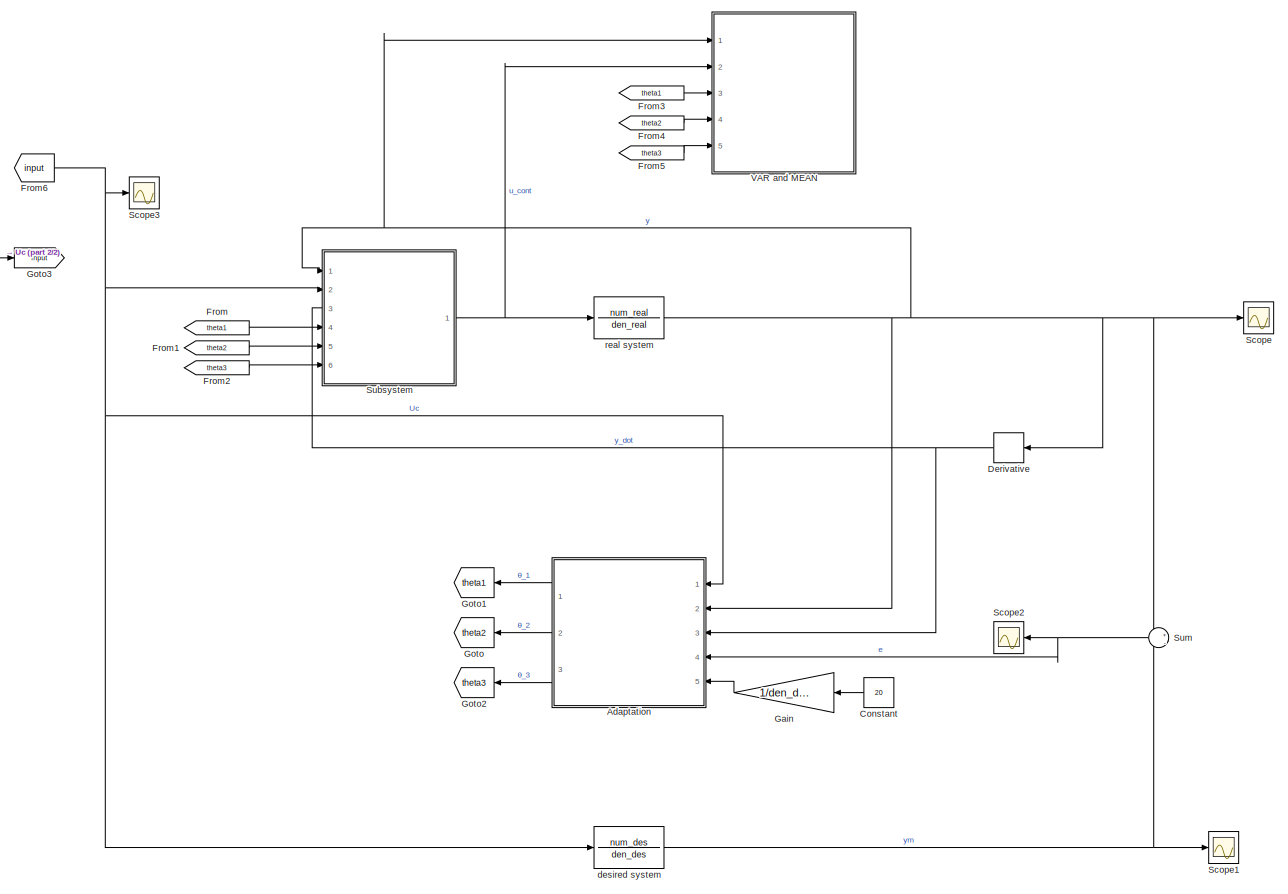
[diagram: root canvas - part 1/2, most of the canvas]
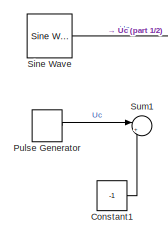
[diagram: root canvas - part 2/2, top left region]
MODEL slx_e05d6d63c537
KIND model
CONFIG AbsTol = auto
CONFIG EnableMultiTasking = off
CONFIG FixedStep = auto
CONFIG MaxStep = auto
CONFIG MinStep = auto
CONFIG RelTol = 1e-4
CONFIG SampleTimeConstraint = Unconstrained
CONFIG SolverName = VariableStepAuto
CONFIG StartTime = 0.0
CONFIG StopTime = 6000
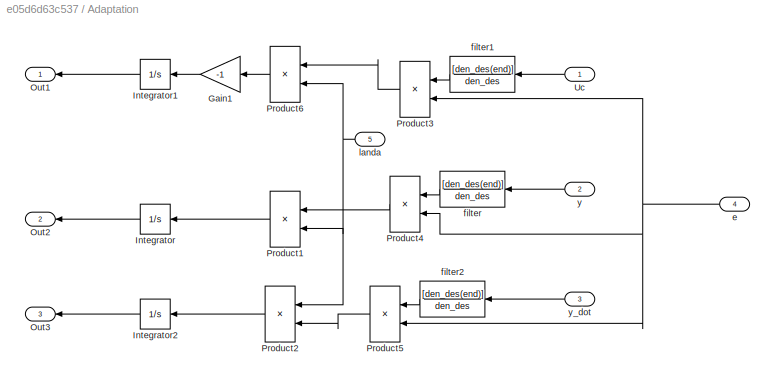
BLOCK [SubSystem] Adaptation
  NameLocation = top
  Ports = [5, 3]
  RequestExecContextInheritance = off
BLOCK [Gain] Adaptation/Gain1
  Gain = -1
  NameLocation = top
BLOCK [Integrator] Adaptation/Integrator
  NameLocation = top
  Ports = [1, 1]
BLOCK [Integrator] Adaptation/Integrator1
  NameLocation = top
  Ports = [1, 1]
BLOCK [Integrator] Adaptation/Integrator2
  NameLocation = top
  Ports = [1, 1]
BLOCK [Outport] Adaptation/Out1
  NameLocation = top
BLOCK [Outport] Adaptation/Out2
  NameLocation = top
  Port = 2
BLOCK [Outport] Adaptation/Out3
  NameLocation = top
  Port = 3
BLOCK [Product] Adaptation/Product1
  NameLocation = top
  Ports = [2, 1]
BLOCK [Product] Adaptation/Product2
  NameLocation = top
  Ports = [2, 1]
BLOCK [Product] Adaptation/Product3
  NameLocation = top
  Ports = [2, 1]
BLOCK [Product] Adaptation/Product4
  NameLocation = top
  Ports = [2, 1]
BLOCK [Product] Adaptation/Product5
  NameLocation = top
  Ports = [2, 1]
BLOCK [Product] Adaptation/Product6
  NameLocation = top
  Ports = [2, 1]
BLOCK [Inport] Adaptation/Uc
  NameLocation = top
BLOCK [Inport] Adaptation/e
  NameLocation = top
  Port = 4
BLOCK [TransferFcn] Adaptation/filter
  Denominator = den_des
  NameLocation = top
  Numerator = [den_des(end)]
BLOCK [TransferFcn] Adaptation/filter1
  Denominator = den_des
  NameLocation = top
  Numerator = [den_des(end)]
BLOCK [TransferFcn] Adaptation/filter2
  Denominator = den_des
  NameLocation = top
  Numerator = [den_des(end)]
BLOCK [Inport] Adaptation/landa
  NameLocation = top
  Port = 5
BLOCK [Inport] Adaptation/y
  NameLocation = top
  Port = 2
BLOCK [Inport] Adaptation/y_dot
  NameLocation = top
  Port = 3
BLOCK [Constant] Constant
  NameLocation = top
  Value = 20
BLOCK [Constant] Constant1
  Value = -1
BLOCK [Derivative] Derivative
  NameLocation = top
BLOCK [From] From
  GotoTag = theta1
BLOCK [From] From1
  GotoTag = theta2
BLOCK [From] From2
  GotoTag = theta3
BLOCK [From] From3
  GotoTag = theta1
BLOCK [From] From4
  GotoTag = theta2
BLOCK [From] From5
  GotoTag = theta3
BLOCK [From] From6
  GotoTag = input
BLOCK [Gain] Gain
  Gain = 1/den_des(end)
  NameLocation = top
BLOCK [Goto] Goto
  GotoTag = theta2
  NameLocation = top
BLOCK [Goto] Goto1
  GotoTag = theta1
  NameLocation = top
BLOCK [Goto] Goto2
  GotoTag = theta3
  NameLocation = top
BLOCK [Goto] Goto3
  GotoTag = input
BLOCK [DiscretePulseGenerator] Pulse Generator
  Amplitude = 2
  Period = period
  Ports = [0, 1]
  PulseType = Time based
  PulseWidth = 50
BLOCK [Scope] Scope
  Floating = off
  NumInputPorts = 1
  Ports = [1]
  ScopeSpecificationString = Simulink.scopes.TimeScopeBlockCfg('CurrentConfiguration', extmgr.ConfigurationSet(extmgr.Configuration('Core','General UI',true),extmgr.Configuration('Core','Source UI',true),extmgr.Configuration('Sources','WiredSimulink',true),extmgr.Configuration('Visuals','Time Domain',true,'SerializedDisplays',{struct('MinYLimReal','-3.3341','MaxYLimReal','5.52282','YLabelReal','','MinYLimMag','0.00000','MaxYL...<+1390ch>
BLOCK [Scope] Scope1
  Floating = off
  NumInputPorts = 1
  Ports = [1]
  ScopeSpecificationString = Simulink.scopes.TimeScopeBlockCfg('CurrentConfiguration', extmgr.ConfigurationSet(extmgr.Configuration('Core','General UI',true),extmgr.Configuration('Core','Source UI',true),extmgr.Configuration('Sources','WiredSimulink',true,'DataLoggingVariableName','ScopeData1'),extmgr.Configuration('Visuals','Time Domain',true,'SerializedDisplays',{struct('MinYLimReal','-0.24985','MaxYLimReal','1.24998','YLab...<+1361ch>
BLOCK [Scope] Scope2
  Floating = off
  NameLocation = top
  NumInputPorts = 1
  Ports = [1]
  ScopeSpecificationString = Simulink.scopes.TimeScopeBlockCfg('CurrentConfiguration', extmgr.ConfigurationSet(extmgr.Configuration('Core','General UI',true),extmgr.Configuration('Core','Source UI',true),extmgr.Configuration('Sources','WiredSimulink',true,'DataLoggingVariableName','ScopeData2'),extmgr.Configuration('Visuals','Time Domain',true,'SerializedDisplays',{struct('MinYLimReal','-0.12787','MaxYLimReal','0.22108','YLab...<+1437ch>
BLOCK [Scope] Scope3
  Floating = off
  NumInputPorts = 1
  Ports = [1]
  ScopeSpecificationString = Simulink.scopes.TimeScopeBlockCfg('CurrentConfiguration', extmgr.ConfigurationSet(extmgr.Configuration('Core','General UI',true),extmgr.Configuration('Core','Source UI',true),extmgr.Configuration('Sources','WiredSimulink',true,'DataLoggingVariableName','ScopeData1'),extmgr.Configuration('Visuals','Time Domain',true,'SerializedDisplays',{struct('MinYLimReal','-1.25','MaxYLimReal','1.25','YLabelReal...<+1394ch>
BLOCK [Reference] Sine Wave  REF=dspsrcs4/Sine Wave
  Ports = [0, 1]
  SourceBlock = dspsrcs4/Sine Wave
  SourceProductBaseCode = DS
  SourceType = Sine Wave
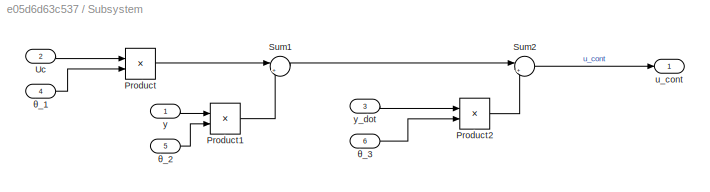
BLOCK [SubSystem] Subsystem
  Ports = [6, 1]
  RequestExecContextInheritance = off
BLOCK [Product] Subsystem/Product
  Ports = [2, 1]
BLOCK [Product] Subsystem/Product1
  Ports = [2, 1]
BLOCK [Product] Subsystem/Product2
  Ports = [2, 1]
BLOCK [Sum] Subsystem/Sum1
  Inputs = |+-
  Ports = [2, 1]
BLOCK [Sum] Subsystem/Sum2
  Inputs = |+-
  Ports = [2, 1]
BLOCK [Inport] Subsystem/Uc
  Port = 2
BLOCK [Outport] Subsystem/u_cont
BLOCK [Inport] Subsystem/y
BLOCK [Inport] Subsystem/y_dot
  NameLocation = top
  Port = 3
BLOCK [Inport] Subsystem/θ_1
  Port = 4
BLOCK [Inport] Subsystem/θ_2
  Port = 5
BLOCK [Inport] Subsystem/θ_3
  Port = 6
BLOCK [Sum] Sum
  Inputs = +|-
  NameLocation = top
  Ports = [2, 1]
BLOCK [Sum] Sum1
  Inputs = |++
  Ports = [2, 1]
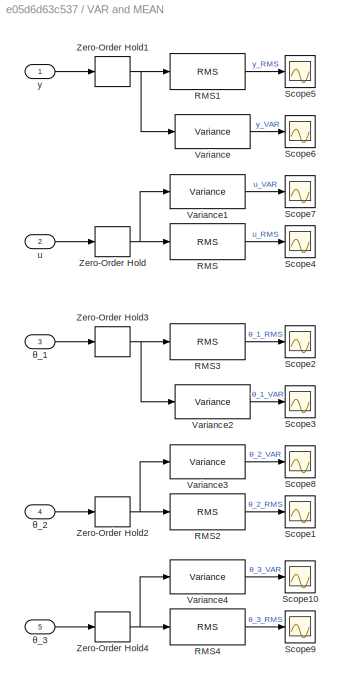
BLOCK [SubSystem] VAR and MEAN
  Ports = [5]
  RequestExecContextInheritance = off
BLOCK [Reference] VAR and MEAN/RMS  REF=dspstat3/RMS
  Ports = [1, 1]
  SourceBlock = dspstat3/RMS
  SourceProductBaseCode = DS
  SourceType = RMS
  UserDataPersistent = on
BLOCK [Reference] VAR and MEAN/RMS1  REF=dspstat3/RMS
  Ports = [1, 1]
  SourceBlock = dspstat3/RMS
  SourceProductBaseCode = DS
  SourceType = RMS
  UserDataPersistent = on
BLOCK [Reference] VAR and MEAN/RMS2  REF=dspstat3/RMS
  Ports = [1, 1]
  SourceBlock = dspstat3/RMS
  SourceProductBaseCode = DS
  SourceType = RMS
  UserDataPersistent = on
BLOCK [Reference] VAR and MEAN/RMS3  REF=dspstat3/RMS
  Ports = [1, 1]
  SourceBlock = dspstat3/RMS
  SourceProductBaseCode = DS
  SourceType = RMS
  UserDataPersistent = on
BLOCK [Reference] VAR and MEAN/RMS4  REF=dspstat3/RMS
  Ports = [1, 1]
  SourceBlock = dspstat3/RMS
  SourceProductBaseCode = DS
  SourceType = RMS
  UserDataPersistent = on
BLOCK [Scope] VAR and MEAN/Scope1
  Floating = off
  NumInputPorts = 1
  Ports = [1]
  ScopeSpecificationString = Simulink.scopes.TimeScopeBlockCfg('CurrentConfiguration', extmgr.ConfigurationSet(extmgr.Configuration('Core','General UI',true),extmgr.Configuration('Core','Source UI',true),extmgr.Configuration('Sources','WiredSimulink',true,'DataLoggingVariableName','ScopeData5'),extmgr.Configuration('Visuals','Time Domain',true,'SerializedDisplays',{struct('MinYLimReal','-2333444.99454','MaxYLimReal','21001004...<+1414ch>
BLOCK [Scope] VAR and MEAN/Scope10
  Floating = off
  NumInputPorts = 1
  Ports = [1]
  ScopeSpecificationString = Simulink.scopes.TimeScopeBlockCfg('CurrentConfiguration', extmgr.ConfigurationSet(extmgr.Configuration('Core','General UI',true),extmgr.Configuration('Core','Source UI',true),extmgr.Configuration('Sources','WiredSimulink',true,'DataLoggingVariableName','ScopeData9'),extmgr.Configuration('Visuals','Time Domain',true,'SerializedDisplays',{struct('MinYLimReal','-700780947940.47388','MaxYLimReal','630...<+1454ch>
BLOCK [Scope] VAR and MEAN/Scope2
  Floating = off
  NumInputPorts = 1
  Ports = [1]
  ScopeSpecificationString = Simulink.scopes.TimeScopeBlockCfg('CurrentConfiguration', extmgr.ConfigurationSet(extmgr.Configuration('Core','General UI',true),extmgr.Configuration('Core','Source UI',true),extmgr.Configuration('Sources','WiredSimulink',true,'DataLoggingVariableName','ScopeData6'),extmgr.Configuration('Visuals','Time Domain',true,'SerializedDisplays',{struct('MinYLimReal','-25.88556','MaxYLimReal','232.97003','Y...<+1401ch>
BLOCK [Scope] VAR and MEAN/Scope3
  Floating = off
  NumInputPorts = 1
  Ports = [1]
  ScopeSpecificationString = Simulink.scopes.TimeScopeBlockCfg('CurrentConfiguration', extmgr.ConfigurationSet(extmgr.Configuration('Core','General UI',true),extmgr.Configuration('Core','Source UI',true),extmgr.Configuration('Sources','WiredSimulink',true,'DataLoggingVariableName','ScopeData7'),extmgr.Configuration('Visuals','Time Domain',true,'SerializedDisplays',{struct('MinYLimReal','-144860640595580096.00000','MaxYLimReal...<+1504ch>
BLOCK [Scope] VAR and MEAN/Scope4
  Floating = off
  NumInputPorts = 1
  Ports = [1]
  ScopeSpecificationString = Simulink.scopes.TimeScopeBlockCfg('CurrentConfiguration', extmgr.ConfigurationSet(extmgr.Configuration('Core','General UI',true),extmgr.Configuration('Core','Source UI',true),extmgr.Configuration('Sources','WiredSimulink',true,'DataLoggingVariableName','ScopeData1'),extmgr.Configuration('Visuals','Time Domain',true,'SerializedDisplays',{struct('MinYLimReal','-24540906746.85534','MaxYLimReal','2208...<+1446ch>
BLOCK [Scope] VAR and MEAN/Scope5
  Floating = off
  NumInputPorts = 1
  Ports = [1]
  ScopeSpecificationString = Simulink.scopes.TimeScopeBlockCfg('CurrentConfiguration', extmgr.ConfigurationSet(extmgr.Configuration('Core','General UI',true),extmgr.Configuration('Core','Source UI',true),extmgr.Configuration('Sources','WiredSimulink',true,'DataLoggingVariableName','ScopeData2'),extmgr.Configuration('Visuals','Time Domain',true,'SerializedDisplays',{struct('MinYLimReal','-2625.16697','MaxYLimReal','23626.50275...<+1417ch>
BLOCK [Scope] VAR and MEAN/Scope6
  Floating = off
  NumInputPorts = 1
  Ports = [1]
  ScopeSpecificationString = Simulink.scopes.TimeScopeBlockCfg('CurrentConfiguration', extmgr.ConfigurationSet(extmgr.Configuration('Core','General UI',true),extmgr.Configuration('Core','Source UI',true),extmgr.Configuration('Sources','WiredSimulink',true,'DataLoggingVariableName','ScopeData3'),extmgr.Configuration('Visuals','Time Domain',true,'SerializedDisplays',{struct('MinYLimReal','-1127987.05968','MaxYLimReal','10151883...<+1414ch>
BLOCK [Scope] VAR and MEAN/Scope7
  Floating = off
  NumInputPorts = 1
  Ports = [1]
  ScopeSpecificationString = Simulink.scopes.TimeScopeBlockCfg('CurrentConfiguration', extmgr.ConfigurationSet(extmgr.Configuration('Core','General UI',true),extmgr.Configuration('Core','Source UI',true),extmgr.Configuration('Sources','WiredSimulink',true,'DataLoggingVariableName','ScopeData4'),extmgr.Configuration('Visuals','Time Domain',true,'SerializedDisplays',{struct('MinYLimReal','-123390933656161288192.00000','MaxYLimR...<+1526ch>
BLOCK [Scope] VAR and MEAN/Scope8
  Floating = off
  NumInputPorts = 1
  Ports = [1]
  ScopeSpecificationString = Simulink.scopes.TimeScopeBlockCfg('CurrentConfiguration', extmgr.ConfigurationSet(extmgr.Configuration('Core','General UI',true),extmgr.Configuration('Core','Source UI',true),extmgr.Configuration('Sources','WiredSimulink',true,'DataLoggingVariableName','ScopeData8'),extmgr.Configuration('Visuals','Time Domain',true,'SerializedDisplays',{struct('MinYLimReal','-700780947940.47388','MaxYLimReal','630...<+1454ch>
BLOCK [Scope] VAR and MEAN/Scope9
  Floating = off
  NumInputPorts = 1
  Ports = [1]
  ScopeSpecificationString = Simulink.scopes.TimeScopeBlockCfg('CurrentConfiguration', extmgr.ConfigurationSet(extmgr.Configuration('Core','General UI',true),extmgr.Configuration('Core','Source UI',true),extmgr.Configuration('Sources','WiredSimulink',true,'DataLoggingVariableName','ScopeData10'),extmgr.Configuration('Visuals','Time Domain',true,'SerializedDisplays',{struct('MinYLimReal','-2333444.99454','MaxYLimReal','2100100...<+1415ch>
BLOCK [Reference] VAR and MEAN/Variance  REF=dspstat3/Variance
  Ports = [1, 1]
  SourceBlock = dspstat3/Variance
  SourceProductBaseCode = DS
  SourceType = Variance
  UserDataPersistent = on
BLOCK [Reference] VAR and MEAN/Variance1  REF=dspstat3/Variance
  Ports = [1, 1]
  SourceBlock = dspstat3/Variance
  SourceProductBaseCode = DS
  SourceType = Variance
  UserDataPersistent = on
BLOCK [Reference] VAR and MEAN/Variance2  REF=dspstat3/Variance
  Ports = [1, 1]
  SourceBlock = dspstat3/Variance
  SourceProductBaseCode = DS
  SourceType = Variance
  UserDataPersistent = on
BLOCK [Reference] VAR and MEAN/Variance3  REF=dspstat3/Variance
  Ports = [1, 1]
  SourceBlock = dspstat3/Variance
  SourceProductBaseCode = DS
  SourceType = Variance
  UserDataPersistent = on
BLOCK [Reference] VAR and MEAN/Variance4  REF=dspstat3/Variance
  Ports = [1, 1]
  SourceBlock = dspstat3/Variance
  SourceProductBaseCode = DS
  SourceType = Variance
  UserDataPersistent = on
BLOCK [ZeroOrderHold] VAR and MEAN/Zero-Order Hold
BLOCK [ZeroOrderHold] VAR and MEAN/Zero-Order Hold1
BLOCK [ZeroOrderHold] VAR and MEAN/Zero-Order Hold2
BLOCK [ZeroOrderHold] VAR and MEAN/Zero-Order Hold3
BLOCK [ZeroOrderHold] VAR and MEAN/Zero-Order Hold4
BLOCK [Inport] VAR and MEAN/u
  Port = 2
BLOCK [Inport] VAR and MEAN/y
BLOCK [Inport] VAR and MEAN/θ_1
  Port = 3
BLOCK [Inport] VAR and MEAN/θ_2
  Port = 4
BLOCK [Inport] VAR and MEAN/θ_3
  Port = 5
BLOCK [TransferFcn] desired system
  Denominator = den_des
  Numerator = num_des
BLOCK [TransferFcn] real system
  Denominator = den_real
  Numerator = num_real
LINE Adaptation/Gain1:1 -> Adaptation/Integrator1:1
LINE Adaptation/Integrator1:1 -> Adaptation/Out1:1
LINE Adaptation/Integrator2:1 -> Adaptation/Out3:1
LINE Adaptation/Integrator:1 -> Adaptation/Out2:1
LINE Adaptation/Product1:1 -> Adaptation/Integrator:1
LINE Adaptation/Product2:1 -> Adaptation/Integrator2:1
LINE Adaptation/Product3:1 -> Adaptation/Product6:1
LINE Adaptation/Product4:1 -> Adaptation/Product1:1
LINE Adaptation/Product5:1 -> Adaptation/Product2:2
LINE Adaptation/Product6:1 -> Adaptation/Gain1:1
LINE Adaptation/Uc:1 -> Adaptation/filter1:1
NET Adaptation/e:1 -> Adaptation/Product3:2, Adaptation/Product4:2, Adaptation/Product5:2
LINE Adaptation/filter1:1 -> Adaptation/Product3:1
LINE Adaptation/filter2:1 -> Adaptation/Product5:1
LINE Adaptation/filter:1 -> Adaptation/Product4:1
NET Adaptation/landa:1 -> Adaptation/Product1:2, Adaptation/Product2:1, Adaptation/Product6:2
LINE Adaptation/y:1 -> Adaptation/filter:1
LINE Adaptation/y_dot:1 -> Adaptation/filter2:1
LINE Adaptation:1 -> Goto1:1
LINE Adaptation:2 -> Goto:1
LINE Adaptation:3 -> Goto2:1
LINE Constant1:1 -> Sum1:2
LINE Constant:1 -> Gain:1
NET Derivative:1 -> Adaptation:3, Subsystem:3
LINE From1:1 -> Subsystem:5
LINE From2:1 -> Subsystem:6
LINE From3:1 -> VAR and MEAN:3
LINE From4:1 -> VAR and MEAN:4
LINE From5:1 -> VAR and MEAN:5
NET From6:1 -> Adaptation:1, Scope3:1, Subsystem:2, desired system:1
LINE From:1 -> Subsystem:4
LINE Gain:1 -> Adaptation:5
LINE Pulse Generator:1 -> Sum1:1
LINE Sine Wave:1 -> Goto3:1
LINE Subsystem/Product1:1 -> Subsystem/Sum1:2
LINE Subsystem/Product2:1 -> Subsystem/Sum2:2
LINE Subsystem/Product:1 -> Subsystem/Sum1:1
LINE Subsystem/Sum1:1 -> Subsystem/Sum2:1
LINE Subsystem/Sum2:1 -> Subsystem/u_cont:1
LINE Subsystem/Uc:1 -> Subsystem/Product:1
LINE Subsystem/y:1 -> Subsystem/Product1:1
LINE Subsystem/y_dot:1 -> Subsystem/Product2:1
LINE Subsystem/θ_1:1 -> Subsystem/Product:2
LINE Subsystem/θ_2:1 -> Subsystem/Product1:2
LINE Subsystem/θ_3:1 -> Subsystem/Product2:2
NET Subsystem:1 -> VAR and MEAN:2, real system:1
NET Sum:1 -> Adaptation:4, Scope2:1
LINE VAR and MEAN/RMS1:1 -> VAR and MEAN/Scope5:1
LINE VAR and MEAN/RMS2:1 -> VAR and MEAN/Scope1:1
LINE VAR and MEAN/RMS3:1 -> VAR and MEAN/Scope2:1
LINE VAR and MEAN/RMS4:1 -> VAR and MEAN/Scope9:1
LINE VAR and MEAN/RMS:1 -> VAR and MEAN/Scope4:1
LINE VAR and MEAN/Variance1:1 -> VAR and MEAN/Scope7:1
LINE VAR and MEAN/Variance2:1 -> VAR and MEAN/Scope3:1
LINE VAR and MEAN/Variance3:1 -> VAR and MEAN/Scope8:1
LINE VAR and MEAN/Variance4:1 -> VAR and MEAN/Scope10:1
LINE VAR and MEAN/Variance:1 -> VAR and MEAN/Scope6:1
NET VAR and MEAN/Zero-Order Hold1:1 -> VAR and MEAN/RMS1:1, VAR and MEAN/Variance:1
NET VAR and MEAN/Zero-Order Hold2:1 -> VAR and MEAN/RMS2:1, VAR and MEAN/Variance3:1
NET VAR and MEAN/Zero-Order Hold3:1 -> VAR and MEAN/RMS3:1, VAR and MEAN/Variance2:1
NET VAR and MEAN/Zero-Order Hold4:1 -> VAR and MEAN/RMS4:1, VAR and MEAN/Variance4:1
NET VAR and MEAN/Zero-Order Hold:1 -> VAR and MEAN/RMS:1, VAR and MEAN/Variance1:1
LINE VAR and MEAN/u:1 -> VAR and MEAN/Zero-Order Hold:1
LINE VAR and MEAN/y:1 -> VAR and MEAN/Zero-Order Hold1:1
LINE VAR and MEAN/θ_1:1 -> VAR and MEAN/Zero-Order Hold3:1
LINE VAR and MEAN/θ_2:1 -> VAR and MEAN/Zero-Order Hold2:1
LINE VAR and MEAN/θ_3:1 -> VAR and MEAN/Zero-Order Hold4:1
NET desired system:1 -> Scope1:1, Sum:2
NET real system:1 -> Adaptation:2, Derivative:1, Scope:1, Subsystem:1, Sum:1, VAR and MEAN:1
note: NET lines group one-source signal fan-out (src -> all destinations, sorted); 1:1 wires keep LINE
